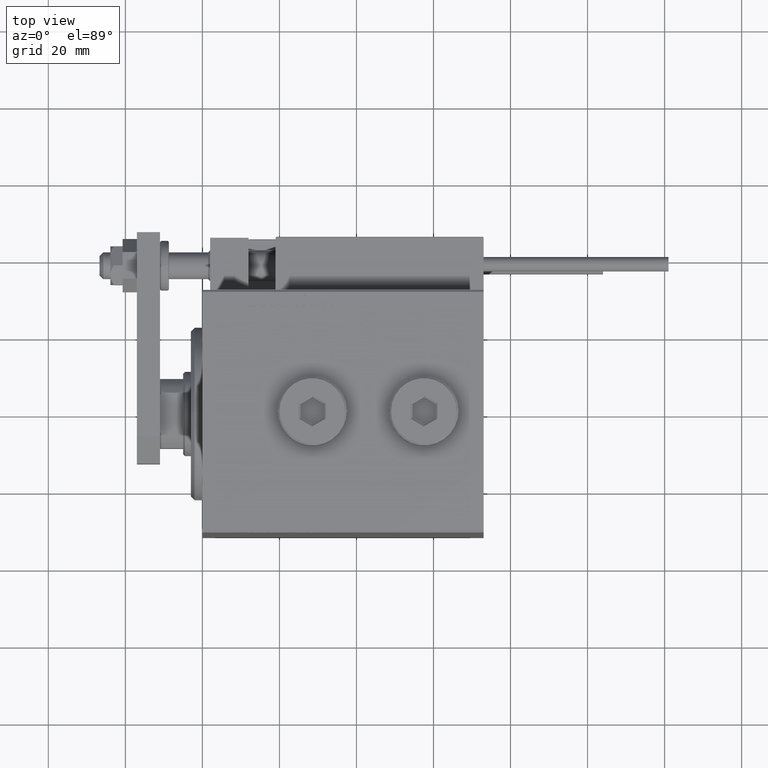
[diagram: clean part render]
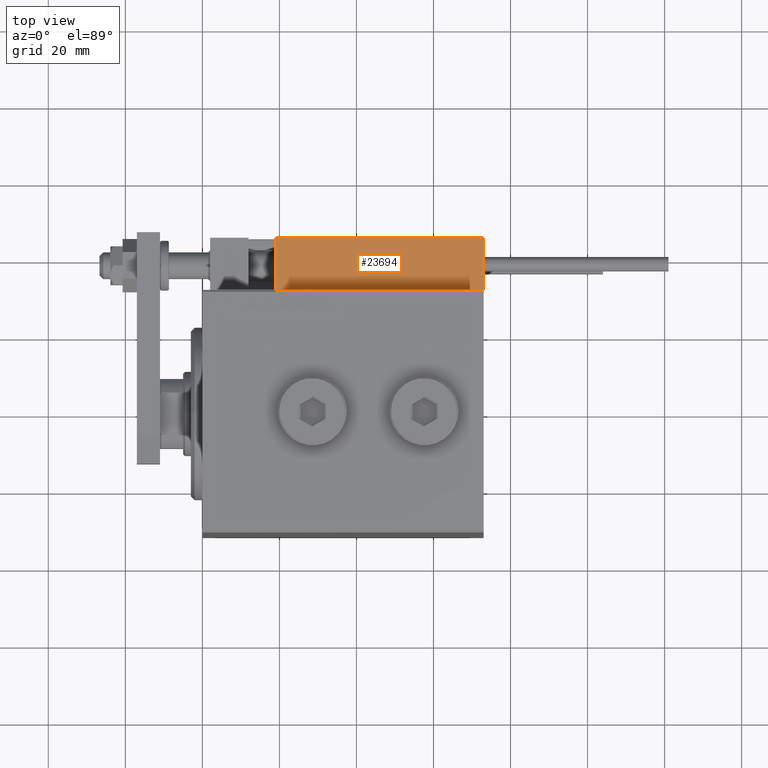
[diagram: same view with one face highlighted and labeled with its STEP entity id]
A machine part, top view. The second image highlights one B-rep face of the part: STEP entity #23694.
In plain terms, the highlighted planar face has unit normal (0, -0, -1).
Its self-contained STEP definition (entity closure, byte-faithful):
#1069 = VECTOR ( 'NONE', #17899, 1000.000000000000000 ) ;
#1771 = CARTESIAN_POINT ( 'NONE',  ( 27.00000000000006395, 20.00000000000001776, 13.70000000000000107 ) ) ;
#2747 = CARTESIAN_POINT ( 'NONE',  ( -26.99999999999993605, 20.00000000000002132, 13.70000000000000107 ) ) ;
#5495 = DIRECTION ( 'NONE',  ( -1.000000000000000000, 6.424901762877062263E-17, 0.000000000000000000 ) ) ;
#6280 = EDGE_CURVE ( 'NONE', #47517, #21841, #30096, .T. ) ;
#6372 = LINE ( 'NONE', #26492, #14369 ) ;
#6592 = ORIENTED_EDGE ( 'NONE', *, *, #44570, .F. ) ;
#12172 = EDGE_LOOP ( 'NONE', ( #6592, #51814, #45181, #31782 ) ) ;
#13422 = CARTESIAN_POINT ( 'NONE',  ( 27.00000000000006395, 20.00000000000001776, 0.000000000000000000 ) ) ;
#14369 = VECTOR ( 'NONE', #26761, 1000.000000000000000 ) ;
#17023 = VECTOR ( 'NONE', #5495, 1000.000000000000000 ) ;
#17899 = DIRECTION ( 'NONE',  ( 1.000000000000000000, -6.424901762877063495E-17, -0.000000000000000000 ) ) ;
#17923 = LINE ( 'NONE', #13422, #17023 ) ;
#19130 = DIRECTION ( 'NONE',  ( -6.424901762877063495E-17, -1.000000000000000000, 0.000000000000000000 ) ) ;
#21841 = VERTEX_POINT ( 'NONE', #40902 ) ;
#22076 = DIRECTION ( 'NONE',  ( 1.000000000000000000, -6.424901762877063495E-17, 0.000000000000000000 ) ) ;
#23634 = CARTESIAN_POINT ( 'NONE',  ( 27.00000000000006395, 20.00000000000001776, 0.000000000000000000 ) ) ;
#23694 = ADVANCED_FACE ( 'NONE', ( #27358 ), #39034, .F. ) ;
#24576 = CARTESIAN_POINT ( 'NONE',  ( -26.99999999999993605, 20.00000000000002132, 0.000000000000000000 ) ) ;
#26492 = CARTESIAN_POINT ( 'NONE',  ( -26.99999999999993605, 20.00000000000002132, 14.00000000000000000 ) ) ;
#26761 = DIRECTION ( 'NONE',  ( -0.000000000000000000, -0.000000000000000000, -1.000000000000000000 ) ) ;
#27327 = CARTESIAN_POINT ( 'NONE',  ( 27.00000000000006395, 20.00000000000001776, 14.00000000000000000 ) ) ;
#27358 = FACE_OUTER_BOUND ( 'NONE', #12172, .T. ) ;
#28603 = AXIS2_PLACEMENT_3D ( 'NONE', #50956, #19130, #22076 ) ;
#30096 = LINE ( 'NONE', #1771, #1069 ) ;
#31782 = ORIENTED_EDGE ( 'NONE', *, *, #51626, .T. ) ;
#34675 = VERTEX_POINT ( 'NONE', #23634 ) ;
#34767 = LINE ( 'NONE', #27327, #49937 ) ;
#39034 = PLANE ( 'NONE',  #28603 ) ;
#40902 = CARTESIAN_POINT ( 'NONE',  ( 27.00000000000006395, 20.00000000000001776, 13.70000000000000107 ) ) ;
#43769 = DIRECTION ( 'NONE',  ( -0.000000000000000000, -0.000000000000000000, -1.000000000000000000 ) ) ;
#44154 = EDGE_CURVE ( 'NONE', #21841, #34675, #34767, .T. ) ;
#44570 = EDGE_CURVE ( 'NONE', #47517, #51491, #6372, .T. ) ;
#45181 = ORIENTED_EDGE ( 'NONE', *, *, #44154, .T. ) ;
#47517 = VERTEX_POINT ( 'NONE', #2747 ) ;
#49937 = VECTOR ( 'NONE', #43769, 1000.000000000000000 ) ;
#50956 = CARTESIAN_POINT ( 'NONE',  ( 27.00000000000006395, 20.00000000000001776, 14.00000000000000000 ) ) ;
#51491 = VERTEX_POINT ( 'NONE', #24576 ) ;
#51626 = EDGE_CURVE ( 'NONE', #34675, #51491, #17923, .T. ) ;
#51814 = ORIENTED_EDGE ( 'NONE', *, *, #6280, .T. ) ;